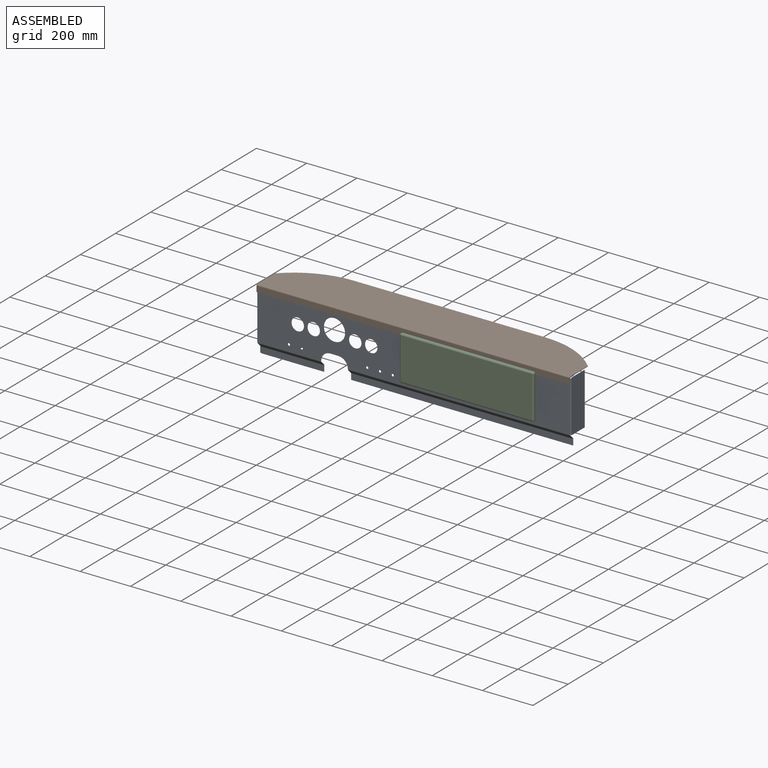
[diagram: assembled view]
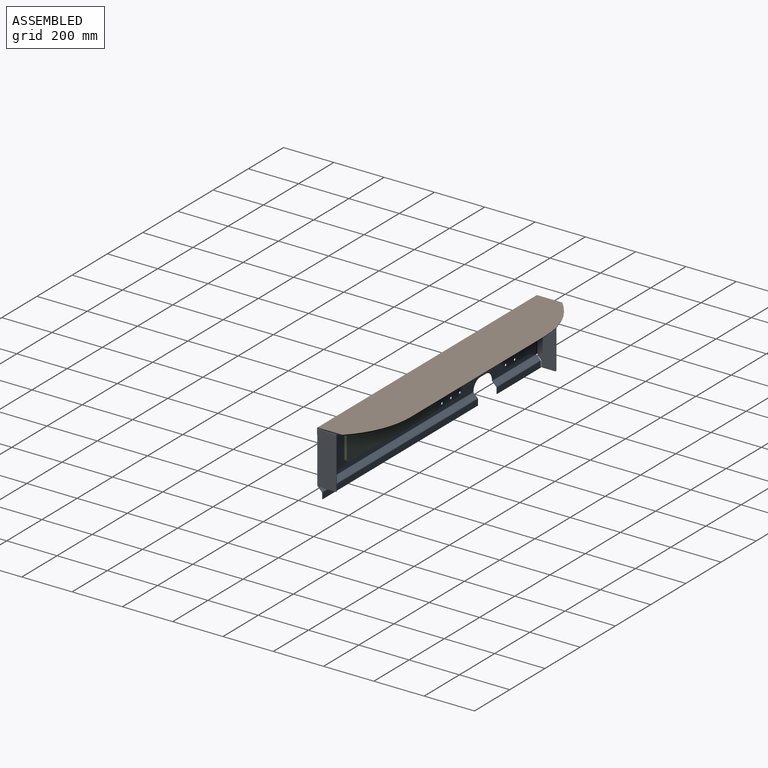
[diagram: assembled view, second angle]
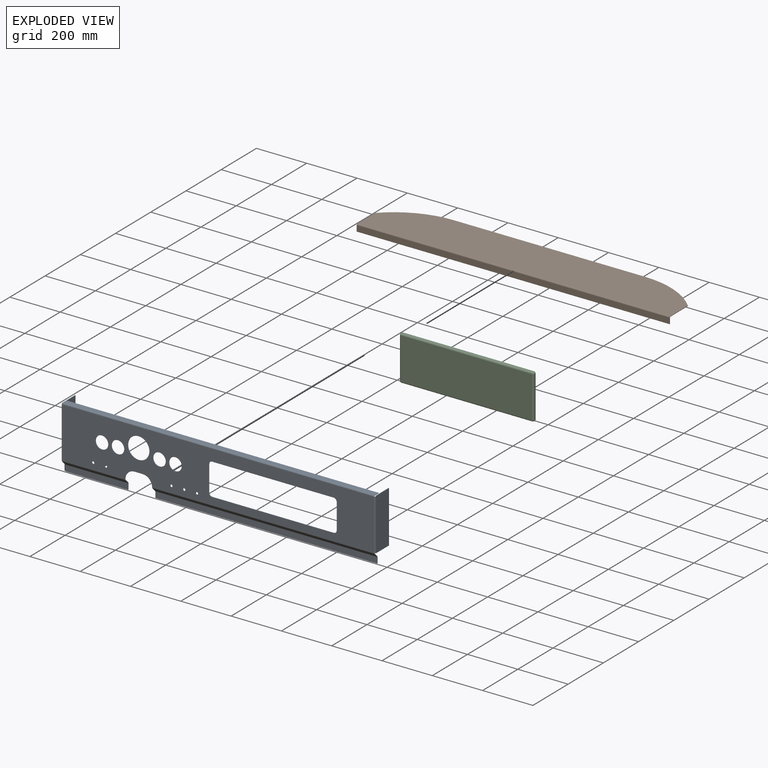
[diagram: exploded view]
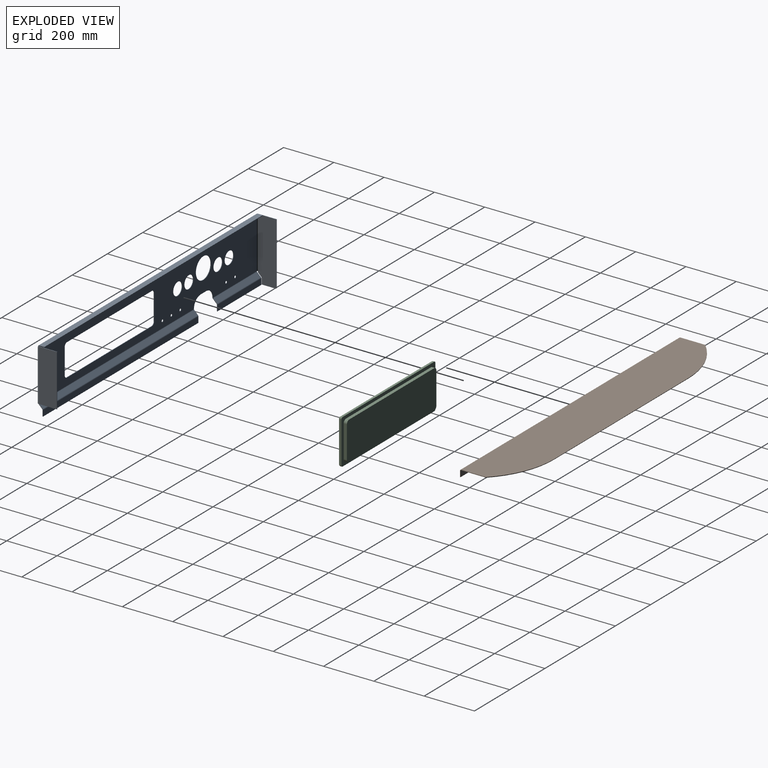
[diagram: exploded view, second angle]
ASSEMBLY  parts=3 mates=5
PART A: 94 faces, bbox 1248.7x78.2x251.8 mm
  f0: plane 482.6x2.03mm, normal (0,0,-1), area 980.6mm2, adj f1,f22,f23,f24
  f1: cylinder r=12.7mm len=12.7mm, axis (0,-1,0), area 40.5mm2, adj f0,f2,f23,f24
  f2: plane 101.6x2.03mm, normal (-1,0,0), area 206.5mm2, adj f1,f3,f23,f24
  f3: cylinder r=12.7mm len=12.7mm, axis (0,-1,0), area 40.5mm2, adj f2,f4,f23,f24
  f4: plane 482.6x2.03mm, normal (0,0,1), area 980.6mm2, adj f3,f5,f23,f24
  f5: cylinder r=12.7mm len=12.7mm, axis (0,-1,0), area 40.5mm2, adj f4,f6,f23,f24
  f6: plane 101.6x2.03mm, normal (1,0,0), area 206.5mm2, adj f5,f22,f23,f24
  f7: cylinder r=38.1mm len=38.1mm, axis (0,-1,0), area 121.6mm2, adj f8,f21,f23,f24
  f8: plane 31.75x2.03mm, normal (0,0,-1), area 64.5mm2, adj f7,f9,f23,f24
  f9: cylinder r=38.1mm len=38.1mm, axis (0,-1,0), area 121.6mm2, adj f8,f10,f23,f24
  f10: plane 2.03x0.04mm, normal (-1,0,0), area 0.1mm2, adj f9,f23,f24,f82
  f11: cylinder r=4.76mm len=9.53mm, axis (0,-1,0), area 60.8mm2, adj f23,f24
  f12: cylinder r=4.76mm len=9.53mm, axis (0,-1,0), area 60.8mm2, adj f23,f24
  f13: cylinder r=4.76mm len=9.53mm, axis (0,-1,0), area 60.8mm2, adj f23,f24
  f14: cylinder r=4.76mm len=9.53mm, axis (0,-1,0), area 60.8mm2, adj f23,f24
  f15: cylinder r=4.76mm len=9.53mm, axis (0,-1,0), area 60.8mm2, adj f23,f24
  f16: cylinder r=25.4mm len=50.8mm, axis (0,-1,0), area 324.3mm2, adj f23,f24
  f17: cylinder r=25.4mm len=50.8mm, axis (0,-1,0), area 324.3mm2, adj f23,f24
  f18: cylinder r=25.4mm len=50.8mm, axis (0,-1,0), area 324.3mm2, adj f23,f24
  f19: cylinder r=25.4mm len=50.8mm, axis (0,-1,0), area 324.3mm2, adj f23,f24
  f20: cylinder r=42.93mm len=85.85mm, axis (0,-1,0), area 548.1mm2, adj f23,f24
  f21: plane 2.03x0.04mm, normal (1,0,0), area 0.1mm2, adj f7,f23,f24,f64
  f22: cylinder r=12.7mm len=12.7mm, axis (0,-1,0), area 40.5mm2, adj f0,f6,f23,f24
  f23: plane 1239.52x202.78mm, normal (0,-1,0), area 169229.6mm2, adj f0,f1,f2,f3,f4,f5,f6,f7
  f24: plane 1239.52x202.78mm, normal (0,1,0), area 169229.6mm2, adj f0,f1,f2,f3,f4,f5,f6,f7
  f25: plane 2.03x1.05mm, normal (0,-1,0), area 2.1mm2, adj f29,f34,f35,f36
  f26: plane 55.88x2.03mm, normal (0,0,-1), area 113.5mm2, adj f27,f33,f34,f35
  f27: plane 25.4x2.03mm, normal (0,-1,0), area 51.6mm2, adj f26,f28,f34,f35
  f28: plane 14.61x14.61mm, normal (0,-0.71,-0.71), area 42mm2, adj f27,f29,f34,f35
  f29: plane 3.18x2.03mm, normal (0,-1,0), area 6.5mm2, adj f25,f28,f34,f35
  f30: plane 2.54x2.03mm, normal (0,-1,0), area 5.2mm2, adj f31,f34,f35,f37
  f31: plane 73.66x2.03mm, normal (0,0,1), area 149.7mm2, adj f30,f32,f34,f35
  f32: plane 246.38x2.03mm, normal (0,1,0), area 500.6mm2, adj f31,f33,f34,f35
  f33: cylinder r=3.17mm len=3.18mm, axis (1,0,0), area 10.1mm2, adj f26,f32,f34,f35
  f34: plane 249.56x73.66mm, normal (-1,0,0), area 17902.4mm2, adj f25,f26,f27,f28,f29,f30,f31,f32
  f35: plane 249.56x73.66mm, normal (1,0,0), area 17902.4mm2, adj f25,f26,f27,f28,f29,f30,f31,f32
  f36: plane 4.57x4.57mm, normal (0,0,-1), area 11.4mm2, adj f25,f38,f39,f65
  f37: plane 4.57x4.57mm, normal (0,0,1), area 11.4mm2, adj f30,f38,f39,f73
  f38: cylinder r=4.57mm len=202.78mm, axis (0,0,-1), area 1456.3mm2, adj f23,f34,f36,f37
  f39: cylinder r=2.54mm len=202.78mm, axis (0,0,-1), area 809.1mm2, adj f24,f35,f36,f37
  f40: plane 2.54x2.03mm, normal (0,-1,0), area 5.2mm2, adj f44,f45,f46,f48
  f41: plane 2.03x1.05mm, normal (0,-1,0), area 2.1mm2, adj f42,f45,f46,f47
  f42: plane 73.66x2.03mm, normal (0,0,-1), area 149.7mm2, adj f41,f43,f45,f46
  f43: plane 206.38x2.03mm, normal (0,1,0), area 419.4mm2, adj f42,f44,f45,f46
  f44: plane 73.66x2.03mm, normal (0,0,1), area 149.7mm2, adj f40,f43,f45,f46
  f45: plane 206.38x73.66mm, normal (1,0,0), area 15201.6mm2, adj f40,f41,f42,f43,f44,f49
  f46: plane 206.38x73.66mm, normal (-1,0,0), area 15201.6mm2, adj f40,f41,f42,f43,f44,f50
  f47: plane 4.57x4.57mm, normal (0,0,-1), area 11.4mm2, adj f41,f49,f50,f81
  f48: plane 4.57x4.57mm, normal (0,0,1), area 11.4mm2, adj f40,f49,f50,f74
  f49: cylinder r=4.57mm len=202.78mm, axis (0,0,-1), area 1456.3mm2, adj f23,f45,f47,f48
  f50: cylinder r=2.54mm len=202.78mm, axis (0,0,-1), area 809.1mm2, adj f24,f46,f47,f48
  f51: plane 23.51x2.03mm, normal (-1,0,0), area 47.8mm2, adj f52,f54,f55,f57
  f52: plane 249.43x2.03mm, normal (0,0,-1), area 506.8mm2, adj f51,f53,f54,f55
  f53: plane 23.51x2.03mm, normal (1,0,0), area 47.8mm2, adj f52,f54,f55,f56
  f54: plane 249.43x23.51mm, normal (0,-1,0), area 5863.1mm2, adj f51,f52,f53,f59
  f55: plane 249.43x23.51mm, normal (0,1,0), area 5863.1mm2, adj f51,f52,f53,f58
  f56: plane 3.23x2.78mm, normal (1,0,0), area 5.7mm2, adj f53,f58,f59,f61
  f57: plane 3.23x2.78mm, normal (-1,0,0), area 5.7mm2, adj f51,f58,f59,f60
  f58: cylinder r=4.57mm len=249.43mm, axis (1,0,0), area 895.7mm2, adj f55,f56,f57,f63
  f59: cylinder r=2.54mm len=249.43mm, axis (1,0,0), area 497.6mm2, adj f54,f56,f57,f62
  f60: plane 17.31x17.31mm, normal (-1,0,0), area 45.6mm2, adj f57,f62,f63,f65
  f61: plane 17.31x17.31mm, normal (1,0,0), area 45.6mm2, adj f56,f62,f63,f64
  f62: plane 249.43x15.88mm, normal (0,-0.71,-0.71), area 5600.7mm2, adj f59,f60,f61,f66
  f63: plane 249.43x15.88mm, normal (0,0.71,0.71), area 5600.7mm2, adj f58,f60,f61,f67
  f64: plane 3.23x2.78mm, normal (1,0,0), area 5.7mm2, adj f21,f61,f66,f67
  f65: plane 3.23x2.78mm, normal (-1,0,0), area 5.7mm2, adj f36,f60,f66,f67
  f66: cylinder r=4.57mm len=249.43mm, axis (1,0,0), area 895.7mm2, adj f23,f62,f64,f65
  f67: cylinder r=2.54mm len=249.43mm, axis (1,0,0), area 497.6mm2, adj f24,f63,f64,f65
  f68: plane 1239.52x2.03mm, normal (0,1,0), area 2518.7mm2, adj f69,f70,f71,f72
  f69: plane 20.83x2.03mm, normal (-1,0,0), area 42.3mm2, adj f68,f71,f72,f73
  f70: plane 20.83x2.03mm, normal (1,0,0), area 42.3mm2, adj f68,f71,f72,f74
  f71: plane 1239.52x20.83mm, normal (0,0,1), area 25816.7mm2, adj f68,f69,f70,f75
  f72: plane 1239.52x20.83mm, normal (0,0,-1), area 25816.7mm2, adj f68,f69,f70,f76
  f73: plane 4.57x4.57mm, normal (-1,0,0), area 11.4mm2, adj f37,f69,f75,f76
  f74: plane 4.57x4.57mm, normal (1,0,0), area 11.4mm2, adj f48,f70,f75,f76
  f75: cylinder r=4.57mm len=1239.52mm, axis (-1,0,0), area 8901.8mm2, adj f23,f71,f73,f74
  f76: cylinder r=2.54mm len=1239.52mm, axis (-1,0,0), area 4945.5mm2, adj f24,f72,f73,f74
  f77: plane 17.31x17.31mm, normal (1,0,0), area 45.6mm2, adj f79,f80,f81,f85
  f78: plane 17.31x17.31mm, normal (-1,0,0), area 45.6mm2, adj f79,f80,f82,f86
  f79: plane 882.14x15.88mm, normal (0,-0.71,-0.71), area 19807.7mm2, adj f77,f78,f83,f88
  f80: plane 882.14x15.88mm, normal (0,0.71,0.71), area 19807.7mm2, adj f77,f78,f84,f87
  f81: plane 3.23x2.78mm, normal (1,0,0), area 5.7mm2, adj f47,f77,f83,f84
  f82: plane 3.23x2.78mm, normal (-1,0,0), area 5.7mm2, adj f10,f78,f83,f84
  f83: cylinder r=4.57mm len=882.14mm, axis (1,0,0), area 3167.6mm2, adj f23,f79,f81,f82
  f84: cylinder r=2.54mm len=882.14mm, axis (1,0,0), area 1759.8mm2, adj f24,f80,f81,f82
  f85: plane 3.23x2.78mm, normal (1,0,0), area 5.7mm2, adj f77,f87,f88,f90
  f86: plane 3.23x2.78mm, normal (-1,0,0), area 5.7mm2, adj f78,f87,f88,f91
  f87: cylinder r=4.57mm len=882.14mm, axis (1,0,0), area 3167.6mm2, adj f80,f85,f86,f93
  f88: cylinder r=2.54mm len=882.14mm, axis (1,0,0), area 1759.8mm2, adj f79,f85,f86,f92
  f89: plane 882.14x2.03mm, normal (0,0,-1), area 1792.5mm2, adj f90,f91,f92,f93
  f90: plane 23.51x2.03mm, normal (1,0,0), area 47.8mm2, adj f85,f89,f92,f93
  f91: plane 23.51x2.03mm, normal (-1,0,0), area 47.8mm2, adj f86,f89,f92,f93
  f92: plane 882.14x23.51mm, normal (0,-1,0), area 20735.8mm2, adj f88,f89,f90,f91
  f93: plane 882.14x23.51mm, normal (0,1,0), area 20735.8mm2, adj f87,f89,f90,f91
PART B: 16 faces, bbox 1244.6x205.2x27.4 mm
  f0: plane 22.86x2.03mm, normal (-1,0,0), area 46.5mm2, adj f1,f3,f4,f13
  f1: plane 1244.6x2.03mm, normal (0,0,-1), area 2529mm2, adj f0,f2,f3,f4
  f2: plane 22.86x2.03mm, normal (1,0,0), area 46.5mm2, adj f1,f3,f4,f12
  f3: plane 1244.6x22.86mm, normal (0,-1,0), area 28451.6mm2, adj f0,f1,f2,f14
  f4: plane 1244.6x22.86mm, normal (0,1,0), area 28451.6mm2, adj f0,f1,f2,f15
  f5: plane 99.06x2.03mm, normal (1,0,0), area 201.3mm2, adj f6,f10,f11,f12
  f6: cylinder r=337.34mm len=241.3mm, axis (0,0,1), area 546.4mm2, adj f5,f7,f10,f11
  f7: plane 762x2.03mm, normal (0,1,0), area 1548.4mm2, adj f6,f8,f10,f11
  f8: cylinder r=337.34mm len=241.3mm, axis (0,0,1), area 546.4mm2, adj f7,f9,f10,f11
  f9: plane 99.06x2.03mm, normal (-1,0,0), area 201.3mm2, adj f8,f10,f11,f13
  f10: plane 1244.6x200.66mm, normal (0,0,1), area 234528.7mm2, adj f5,f6,f7,f8,f9,f14
  f11: plane 1244.6x200.66mm, normal (0,0,-1), area 234528.7mm2, adj f5,f6,f7,f8,f9,f15
  f12: plane 4.57x4.57mm, normal (1,0,0), area 11.4mm2, adj f2,f5,f14,f15
  f13: plane 4.57x4.57mm, normal (-1,0,0), area 11.4mm2, adj f0,f9,f14,f15
  f14: cylinder r=4.57mm len=1244.6mm, axis (1,0,0), area 8938.3mm2, adj f3,f10,f12,f13
  f15: cylinder r=2.54mm len=1244.6mm, axis (1,0,0), area 4965.7mm2, adj f4,f11,f12,f13
PART C: 27 faces, bbox 533.4x25.4x177.8 mm
  f0: plane 165.1x6.35mm, normal (-1,0,0), area 1048.4mm2, adj f1,f7,f9,f13
  f1: cylinder r=6.35mm len=6.35mm, axis (0,1,0), area 63.3mm2, adj f0,f2,f9,f15
  f2: plane 520.7x6.35mm, normal (0,0,-1), area 3306.4mm2, adj f1,f3,f9,f17
  f3: cylinder r=6.35mm len=6.35mm, axis (0,1,0), area 63.3mm2, adj f2,f4,f9,f16
  f4: plane 165.1x6.35mm, normal (1,0,0), area 1048.4mm2, adj f3,f5,f9,f14
  f5: cylinder r=6.35mm len=6.35mm, axis (0,1,0), area 63.3mm2, adj f4,f6,f9,f12
  f6: plane 520.7x6.35mm, normal (0,0,1), area 3306.4mm2, adj f5,f7,f9,f10
  f7: cylinder r=6.35mm len=6.35mm, axis (0,1,0), area 63.3mm2, adj f0,f6,f9,f11
  f8: plane 520.7x165.1mm, normal (0,-1,0), area 85967.6mm2, adj f10,f13,f14,f17
  f9: plane 533.4x177.8mm, normal (0,1,0), area 17523.2mm2, adj f0,f1,f2,f3,f4,f5,f6,f7
  f10: cylinder r=6.35mm len=520.7mm, axis (1,0,0), area 5193.8mm2, adj f6,f8,f11,f12
  f11: sphere r=6.35mm, area 63.3mm2, adj f7,f10,f13
  f12: sphere r=6.35mm, area 63.3mm2, adj f5,f10,f14
  f13: cylinder r=6.35mm len=165.1mm, axis (0,0,1), area 1646.8mm2, adj f0,f8,f11,f15
  f14: cylinder r=6.35mm len=165.1mm, axis (0,0,-1), area 1646.8mm2, adj f4,f8,f12,f16
  f15: sphere r=6.35mm, area 63.3mm2, adj f1,f13,f17
  f16: sphere r=6.35mm, area 63.3mm2, adj f3,f14,f17
  f17: cylinder r=6.35mm len=520.7mm, axis (-1,0,0), area 5193.8mm2, adj f2,f8,f15,f16
  f18: plane 482.6x12.7mm, normal (0,0,1), area 6129mm2, adj f9,f19,f25,f26
  f19: cylinder r=12.7mm len=12.7mm, axis (0,-1,0), area 253.4mm2, adj f9,f18,f20,f26
  f20: plane 127x12.7mm, normal (1,0,0), area 1612.9mm2, adj f9,f19,f21,f26
  f21: cylinder r=12.7mm len=12.7mm, axis (0,-1,0), area 253.4mm2, adj f9,f20,f22,f26
  f22: plane 482.6x12.7mm, normal (0,0,-1), area 6129mm2, adj f9,f21,f23,f26
  f23: cylinder r=12.7mm len=12.7mm, axis (0,-1,0), area 253.4mm2, adj f9,f22,f24,f26
  f24: plane 127x12.7mm, normal (-1,0,0), area 1612.9mm2, adj f9,f23,f25,f26
  f25: cylinder r=12.7mm len=12.7mm, axis (0,-1,0), area 253.4mm2, adj f9,f18,f24,f26
  f26: plane 508x152.4mm, normal (0,1,0), area 77280.7mm2, adj f18,f19,f20,f21,f22,f23,f24,f25
PLACE A t=(-37.78,341.6,-141.93)mm
PLACE B t=(-39.82,263.37,-85.93)mm fixed
PLACE C t=(179.48,263.37,-165.3)mm
MATE planar A.f23 <-> B.f4  axis (0,-1,0) through (-87.36,263.37,-162.61)mm
MATE planar A.f71 <-> B.f11  axis (0,0,1) through (-657.54,288.77,-60.53)mm
MATE planar C.f23 <-> A.f23  axis (0,1,0) through (-61.82,263.37,-228.8)mm
MATE planar C.f20 <-> A.f2  axis (1,0,0) through (433.48,269.72,-165.3)mm
MATE planar B.f0 <-> A.f34  axis (-1,0,0) through (-662.12,262.35,-74.5)mm
